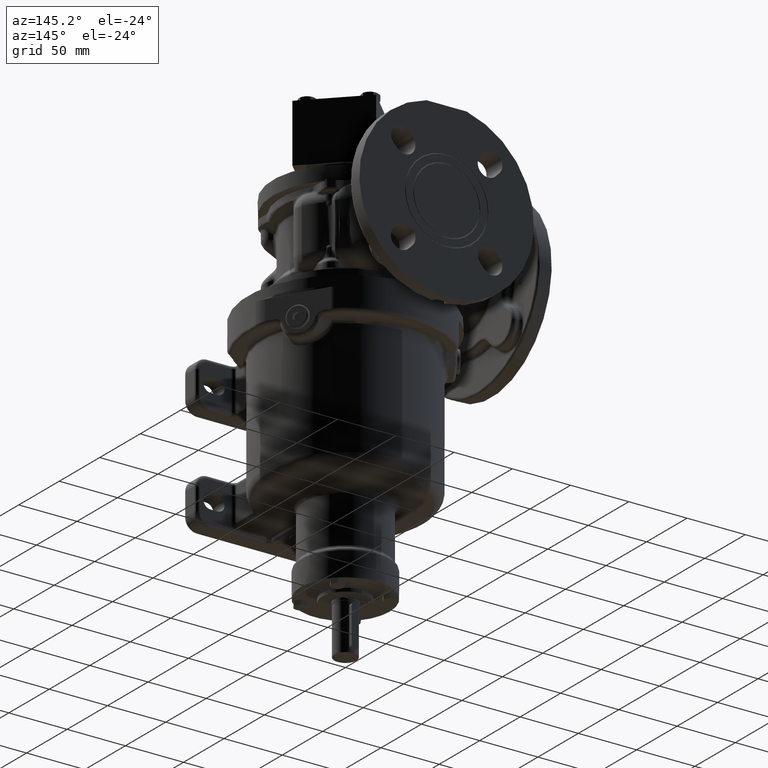
[diagram: clean part render]
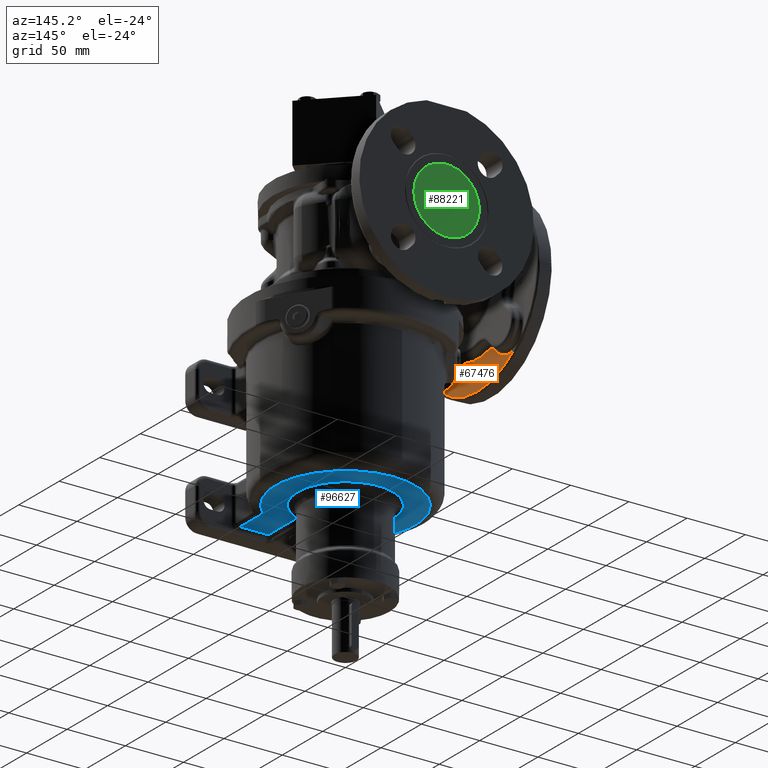
[diagram: same view with three faces highlighted in distinct colors, each labeled with its STEP entity id]
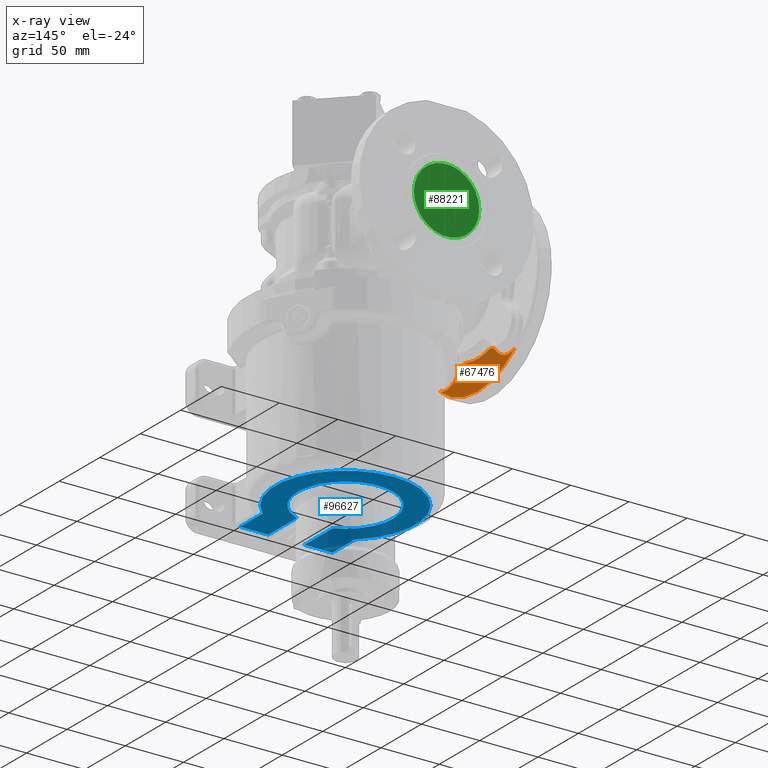
[diagram: x-ray of the same camera — body ghosted, the three highlighted faces saturated]
A machine part, auxiliary view with three faces highlighted in distinct colors.
The next image is the same camera in x-ray (body ghosted, the three faces saturated) — at least one of them is partly hidden behind the body in this view.
Their STEP definitions:

[orange] entity #67476 — the highlighted planar face has unit normal (-1, 0, 0).
#12363=CARTESIAN_POINT('',(-1.134E2,-4.643140709080E1,1.186695070531E2));
#12382=CARTESIAN_POINT('',(-1.134E2,-1.679623939384E-14,1.75E2));
#12383=DIRECTION('',(1.E0,0.E0,0.E0));
#12384=DIRECTION('',(0.E0,-6.360466725201E-1,-7.716505882691E-1));
#12385=AXIS2_PLACEMENT_3D('',#12382,#12383,#12384);
#12404=CARTESIAN_POINT('',(-1.134E2,4.643140709024E1,1.186695070529E2));
#12761=CARTESIAN_POINT('',(-1.134E2,3.889087296526E1,1.361091270347E2));
#12762=DIRECTION('',(-1.E0,0.E0,0.E0));
#12763=DIRECTION('',(0.E0,3.968702172432E-1,-9.178747358247E-1));
#12764=AXIS2_PLACEMENT_3D('',#12761,#12762,#12763);
#12766=CARTESIAN_POINT('',(-1.134E2,-3.889087296526E1,1.361091270347E2));
#12767=DIRECTION('',(-1.E0,0.E0,0.E0));
#12768=DIRECTION('',(0.E0,7.071067811865E-1,-7.071067811866E-1));
#12769=AXIS2_PLACEMENT_3D('',#12766,#12767,#12768);
#12771=DIRECTION('',(0.E0,-7.071067811865E-1,-7.071067811865E-1));
#12772=VECTOR('',#12771,6.533516735790E0);
#12773=CARTESIAN_POINT('',(-1.134E2,-2.083595013384E1,1.272939921811E2));
#12774=LINE('',#12773,#12772);
#12775=CARTESIAN_POINT('',(-1.134E2,-1.588620266554E1,1.223442447128E2));
#12776=DIRECTION('',(1.E0,0.E0,0.E0));
#12777=DIRECTION('',(0.E0,2.888400484643E-1,9.573773688589E-1));
#12778=AXIS2_PLACEMENT_3D('',#12775,#12776,#12777);
#12780=CARTESIAN_POINT('',(-1.134E2,-1.679623939384E-14,1.75E2));
#12781=DIRECTION('',(-1.E0,0.E0,0.E0));
#12782=DIRECTION('',(0.E0,2.888400484643E-1,-9.573773688589E-1));
#12783=AXIS2_PLACEMENT_3D('',#12780,#12781,#12782);
#12785=CARTESIAN_POINT('',(-1.134E2,1.588620266554E1,1.223442447128E2));
#12786=DIRECTION('',(1.E0,0.E0,0.E0));
#12787=DIRECTION('',(0.E0,7.071067811865E-1,7.071067811866E-1));
#12788=AXIS2_PLACEMENT_3D('',#12785,#12786,#12787);
#12790=DIRECTION('',(0.E0,-7.071067811865E-1,7.071067811865E-1));
#12791=VECTOR('',#12790,6.533516735789E0);
#12792=CARTESIAN_POINT('',(-1.134E2,2.545584412272E1,1.226740981922E2));
#12793=LINE('',#12792,#12791);
#32853=VERTEX_POINT('',#12404);
#32856=VERTEX_POINT('',#12363);
#32912=CARTESIAN_POINT('',(-1.134E2,2.545584412272E1,1.226740981922E2));
#32913=VERTEX_POINT('',#32912);
#32916=CARTESIAN_POINT('',(-1.134E2,2.083595013384E1,1.272939921811E2));
#32917=VERTEX_POINT('',#32916);
#32920=CARTESIAN_POINT('',(-1.134E2,1.386432232629E1,1.290458862948E2));
#32921=VERTEX_POINT('',#32920);
#32924=CARTESIAN_POINT('',(-1.134E2,-1.386432232629E1,1.290458862948E2));
#32925=VERTEX_POINT('',#32924);
#32928=CARTESIAN_POINT('',(-1.134E2,-2.083595013384E1,1.272939921811E2));
#32929=VERTEX_POINT('',#32928);
#32932=CARTESIAN_POINT('',(-1.134E2,-2.545584412272E1,1.226740981922E2));
#32933=VERTEX_POINT('',#32932);
#67455=CARTESIAN_POINT('',(-1.134E2,-1.679623939384E-14,1.75E2));
#67456=DIRECTION('',(-1.E0,0.E0,0.E0));
#67457=DIRECTION('',(0.E0,0.E0,-1.E0));
#67458=AXIS2_PLACEMENT_3D('',#67455,#67456,#67457);
#67459=PLANE('',#67458);
#67460=ORIENTED_EDGE('',*,*,#67448,.F.);
#67461=ORIENTED_EDGE('',*,*,#67087,.F.);
#67463=ORIENTED_EDGE('',*,*,#67462,.F.);
#67465=ORIENTED_EDGE('',*,*,#67464,.F.);
#67467=ORIENTED_EDGE('',*,*,#67466,.F.);
#67469=ORIENTED_EDGE('',*,*,#67468,.F.);
#67471=ORIENTED_EDGE('',*,*,#67470,.F.);
#67473=ORIENTED_EDGE('',*,*,#67472,.F.);
#67474=EDGE_LOOP('',(#67460,#67461,#67463,#67465,#67467,#67469,#67471,#67473));
#67475=FACE_OUTER_BOUND('',#67474,.F.);
#67476=ADVANCED_FACE('',(#67475),#67459,.F.);
#12386=CIRCLE('',#12385,7.3E1);
#12765=CIRCLE('',#12764,1.9E1);
#12770=CIRCLE('',#12769,1.9E1);
#12779=CIRCLE('',#12778,7.E0);
#12784=CIRCLE('',#12783,4.8E1);
#12789=CIRCLE('',#12788,7.E0);
#67087=EDGE_CURVE('',#32856,#32853,#12386,.T.);
#67448=EDGE_CURVE('',#32853,#32913,#12765,.T.);
#67462=EDGE_CURVE('',#32933,#32856,#12770,.T.);
#67464=EDGE_CURVE('',#32929,#32933,#12774,.T.);
#67466=EDGE_CURVE('',#32925,#32929,#12779,.T.);
#67468=EDGE_CURVE('',#32921,#32925,#12784,.T.);
#67470=EDGE_CURVE('',#32917,#32921,#12789,.T.);
#67472=EDGE_CURVE('',#32913,#32917,#12793,.T.);

[blue] entity #96627 — the highlighted planar face has unit normal (0, 0, 1).
#27716=CARTESIAN_POINT('',(-3.95E1,-4.516359153123E1,-1.45E1));
#27718=CARTESIAN_POINT('',(0.E0,-1.659394412845E-14,-1.45E1));
#27719=DIRECTION('',(0.E0,0.E0,-1.E0));
#27720=DIRECTION('',(-6.583333333333E-1,-7.527265255205E-1,0.E0));
#27721=AXIS2_PLACEMENT_3D('',#27718,#27719,#27720);
#27838=CARTESIAN_POINT('',(3.95E1,-4.516359153123E1,-1.45E1));
#27865=DIRECTION('',(-1.E0,0.E0,0.E0));
#27866=VECTOR('',#27865,2.400003629523E1);
#27867=CARTESIAN_POINT('',(-1.55E1,-7.302086962845E1,-1.45E1));
#27868=LINE('',#27867,#27866);
#27869=CARTESIAN_POINT('',(-1.55E1,-7.3E1,-1.45E1));
#27870=DIRECTION('',(0.E0,0.E0,-1.E0));
#27871=DIRECTION('',(1.E0,0.E0,0.E0));
#27872=AXIS2_PLACEMENT_3D('',#27869,#27870,#27871);
#27874=DIRECTION('',(0.E0,-1.E0,0.E0));
#27875=VECTOR('',#27874,3.311579269780E1);
#27876=CARTESIAN_POINT('',(-1.547913037155E1,-3.988420730220E1,-1.45E1));
#27877=LINE('',#27876,#27875);
#27878=CARTESIAN_POINT('',(-1.549262830812E1,-3.796022218173E1,-1.45E1));
#27879=CARTESIAN_POINT('',(-1.549054935209E1,-3.816147390107E1,-1.45E1));
#27880=CARTESIAN_POINT('',(-1.548604920246E1,-3.857231787230E1,-1.45E1));
#27881=CARTESIAN_POINT('',(-1.548059191384E1,-3.921352312089E1,-1.45E1));
#27882=CARTESIAN_POINT('',(-1.547913038353E1,-3.965784927840E1,-1.45E1));
#27883=CARTESIAN_POINT('',(-1.547913037155E1,-3.988420730220E1,-1.45E1));
#27885=CARTESIAN_POINT('',(0.E0,-1.659394412845E-14,-1.45E1));
#27886=DIRECTION('',(0.E0,0.E0,-1.E0));
#27887=DIRECTION('',(-3.778689831342E-1,-9.258590776059E-1,0.E0));
#27888=AXIS2_PLACEMENT_3D('',#27885,#27886,#27887);
#27890=CARTESIAN_POINT('',(1.547913037155E1,-3.988420730278E1,-1.45E1));
#27891=CARTESIAN_POINT('',(1.547913037460E1,-3.965779273647E1,-1.45E1));
#27892=CARTESIAN_POINT('',(1.548059154594E1,-3.921338010307E1,-1.45E1));
#27893=CARTESIAN_POINT('',(1.548606012475E1,-3.857122702575E1,-1.45E1));
#27894=CARTESIAN_POINT('',(1.549055423607E1,-3.816100164647E1,-1.45E1));
#27895=CARTESIAN_POINT('',(1.549262830862E1,-3.796022218153E1,-1.45E1));
#27897=DIRECTION('',(0.E0,1.E0,0.E0));
#27898=VECTOR('',#27897,3.311579269722E1);
#27899=CARTESIAN_POINT('',(1.547913037155E1,-7.3E1,-1.45E1));
#27900=LINE('',#27899,#27898);
#27901=CARTESIAN_POINT('',(1.55E1,-7.3E1,-1.45E1));
#27902=DIRECTION('',(0.E0,0.E0,-1.E0));
#27903=DIRECTION('',(0.E0,-1.E0,0.E0));
#27904=AXIS2_PLACEMENT_3D('',#27901,#27902,#27903);
#27906=DIRECTION('',(-1.E0,0.E0,0.E0));
#27907=VECTOR('',#27906,2.400003629522E1);
#27908=CARTESIAN_POINT('',(3.950003629522E1,-7.302086962845E1,-1.45E1));
#27909=LINE('',#27908,#27907);
#27910=CARTESIAN_POINT('',(4.55E1,-7.3E1,-1.45E1));
#27911=DIRECTION('',(0.E0,0.E0,-1.E0));
#27912=DIRECTION('',(-9.999939507957E-1,-3.478271408215E-3,0.E0));
#27913=AXIS2_PLACEMENT_3D('',#27910,#27911,#27912);
#27915=DIRECTION('',(0.E0,-1.E0,0.E0));
#27916=VECTOR('',#27915,2.783640846877E1);
#27917=CARTESIAN_POINT('',(3.95E1,-4.516359153123E1,-1.45E1));
#27918=LINE('',#27917,#27916);
#27919=DIRECTION('',(0.E0,-1.E0,0.E0));
#27920=VECTOR('',#27919,2.783640846877E1);
#27921=CARTESIAN_POINT('',(-3.95E1,-4.516359153123E1,-1.45E1));
#27922=LINE('',#27921,#27920);
#27923=CARTESIAN_POINT('',(-4.55E1,-7.3E1,-1.45E1));
#27924=DIRECTION('',(0.E0,0.E0,-1.E0));
#27925=DIRECTION('',(1.E0,0.E0,0.E0));
#27926=AXIS2_PLACEMENT_3D('',#27923,#27924,#27925);
#27957=CARTESIAN_POINT('',(-3.950003629523E1,-7.302086962845E1,-1.45E1));
#30829=CARTESIAN_POINT('',(3.950003629522E1,-7.302086962845E1,-1.45E1));
#31881=VERTEX_POINT('',#27957);
#31884=CARTESIAN_POINT('',(-1.55E1,-7.302086962845E1,-1.45E1));
#31885=VERTEX_POINT('',#31884);
#31888=CARTESIAN_POINT('',(-1.547913037155E1,-7.3E1,-1.45E1));
#31889=VERTEX_POINT('',#31888);
#31892=CARTESIAN_POINT('',(-1.547913037155E1,-3.988420730220E1,-1.45E1));
#31893=VERTEX_POINT('',#31892);
#31895=VERTEX_POINT('',#27878);
#31900=VERTEX_POINT('',#27716);
#31923=VERTEX_POINT('',#27838);
#31930=VERTEX_POINT('',#30829);
#31933=CARTESIAN_POINT('',(1.55E1,-7.302086962845E1,-1.45E1));
#31934=VERTEX_POINT('',#31933);
#31937=CARTESIAN_POINT('',(1.547913037155E1,-7.3E1,-1.45E1));
#31938=VERTEX_POINT('',#31937);
#31941=CARTESIAN_POINT('',(1.547913037155E1,-3.988420730278E1,-1.45E1));
#31942=VERTEX_POINT('',#31941);
#31944=VERTEX_POINT('',#27895);
#31950=CARTESIAN_POINT('',(-3.95E1,-7.3E1,-1.45E1));
#31951=VERTEX_POINT('',#31950);
#31952=CARTESIAN_POINT('',(3.95E1,-7.3E1,-1.45E1));
#31953=VERTEX_POINT('',#31952);
#96594=CARTESIAN_POINT('',(0.E0,-1.659394412845E-14,-1.45E1));
#96595=DIRECTION('',(0.E0,0.E0,1.E0));
#96596=DIRECTION('',(0.E0,1.E0,0.E0));
#96597=AXIS2_PLACEMENT_3D('',#96594,#96595,#96596);
#96598=PLANE('',#96597);
#96600=ORIENTED_EDGE('',*,*,#96599,.F.);
#96602=ORIENTED_EDGE('',*,*,#96601,.F.);
#96604=ORIENTED_EDGE('',*,*,#96603,.F.);
#96606=ORIENTED_EDGE('',*,*,#96605,.F.);
#96608=ORIENTED_EDGE('',*,*,#96607,.T.);
#96610=ORIENTED_EDGE('',*,*,#96609,.F.);
#96612=ORIENTED_EDGE('',*,*,#96611,.F.);
#96614=ORIENTED_EDGE('',*,*,#96613,.F.);
#96616=ORIENTED_EDGE('',*,*,#96615,.F.);
#96618=ORIENTED_EDGE('',*,*,#96617,.T.);
#96619=ORIENTED_EDGE('',*,*,#96583,.F.);
#96620=ORIENTED_EDGE('',*,*,#95736,.F.);
#96622=ORIENTED_EDGE('',*,*,#96621,.T.);
#96624=ORIENTED_EDGE('',*,*,#96623,.T.);
#96625=EDGE_LOOP('',(#96600,#96602,#96604,#96606,#96608,#96610,#96612,#96614,
#96616,#96618,#96619,#96620,#96622,#96624));
#96626=FACE_OUTER_BOUND('',#96625,.F.);
#96627=ADVANCED_FACE('',(#96626),#96598,.F.);
#27722=CIRCLE('',#27721,6.E1);
#27873=CIRCLE('',#27872,2.086962844930E-2);
#27884=B_SPLINE_CURVE_WITH_KNOTS('',3,(#27878,#27879,#27880,#27881,#27882,
#27883),.UNSPECIFIED.,.F.,.F.,(4,1,1,4),(0.E0,3.333333333333E-1,
6.666666666667E-1,1.E0),.UNSPECIFIED.);
#27889=CIRCLE('',#27888,4.1E1);
#27896=B_SPLINE_CURVE_WITH_KNOTS('',3,(#27890,#27891,#27892,#27893,#27894,
#27895),.UNSPECIFIED.,.F.,.F.,(4,1,1,4),(0.E0,3.333333333333E-1,
6.666666666667E-1,1.E0),.UNSPECIFIED.);
#27905=CIRCLE('',#27904,2.086962844929E-2);
#27914=CIRCLE('',#27913,6.E0);
#27927=CIRCLE('',#27926,6.E0);
#95736=EDGE_CURVE('',#31900,#31923,#27722,.T.);
#96583=EDGE_CURVE('',#31923,#31953,#27918,.T.);
#96599=EDGE_CURVE('',#31885,#31881,#27868,.T.);
#96601=EDGE_CURVE('',#31889,#31885,#27873,.T.);
#96603=EDGE_CURVE('',#31893,#31889,#27877,.T.);
#96605=EDGE_CURVE('',#31895,#31893,#27884,.T.);
#96607=EDGE_CURVE('',#31895,#31944,#27889,.T.);
#96609=EDGE_CURVE('',#31942,#31944,#27896,.T.);
#96611=EDGE_CURVE('',#31938,#31942,#27900,.T.);
#96613=EDGE_CURVE('',#31934,#31938,#27905,.T.);
#96615=EDGE_CURVE('',#31930,#31934,#27909,.T.);
#96617=EDGE_CURVE('',#31930,#31953,#27914,.T.);
#96621=EDGE_CURVE('',#31900,#31951,#27922,.T.);
#96623=EDGE_CURVE('',#31951,#31881,#27927,.T.);

[green] entity #88221 — the highlighted planar face has unit normal (0, -1, 0).
#22179=CARTESIAN_POINT('',(0.E0,1.25E2,1.75E2));
#22180=DIRECTION('',(0.E0,-1.E0,0.E0));
#22181=DIRECTION('',(1.E0,0.E0,0.E0));
#22182=AXIS2_PLACEMENT_3D('',#22179,#22180,#22181);
#22184=CARTESIAN_POINT('',(0.E0,1.25E2,1.75E2));
#22185=DIRECTION('',(0.E0,-1.E0,0.E0));
#22186=DIRECTION('',(-1.E0,0.E0,0.E0));
#22187=AXIS2_PLACEMENT_3D('',#22184,#22185,#22186);
#33937=CARTESIAN_POINT('',(2.81E1,1.25E2,1.75E2));
#33938=VERTEX_POINT('',#33937);
#33945=CARTESIAN_POINT('',(-2.81E1,1.25E2,1.75E2));
#33946=VERTEX_POINT('',#33945);
#88212=CARTESIAN_POINT('',(0.E0,1.25E2,1.75E2));
#88213=DIRECTION('',(0.E0,-1.E0,0.E0));
#88214=DIRECTION('',(1.E0,0.E0,0.E0));
#88215=AXIS2_PLACEMENT_3D('',#88212,#88213,#88214);
#88216=PLANE('',#88215);
#88217=ORIENTED_EDGE('',*,*,#88207,.T.);
#88218=ORIENTED_EDGE('',*,*,#88191,.T.);
#88219=EDGE_LOOP('',(#88217,#88218));
#88220=FACE_OUTER_BOUND('',#88219,.F.);
#88221=ADVANCED_FACE('',(#88220),#88216,.F.);
#22183=CIRCLE('',#22182,2.81E1);
#22188=CIRCLE('',#22187,2.81E1);
#88191=EDGE_CURVE('',#33946,#33938,#22188,.T.);
#88207=EDGE_CURVE('',#33938,#33946,#22183,.T.);